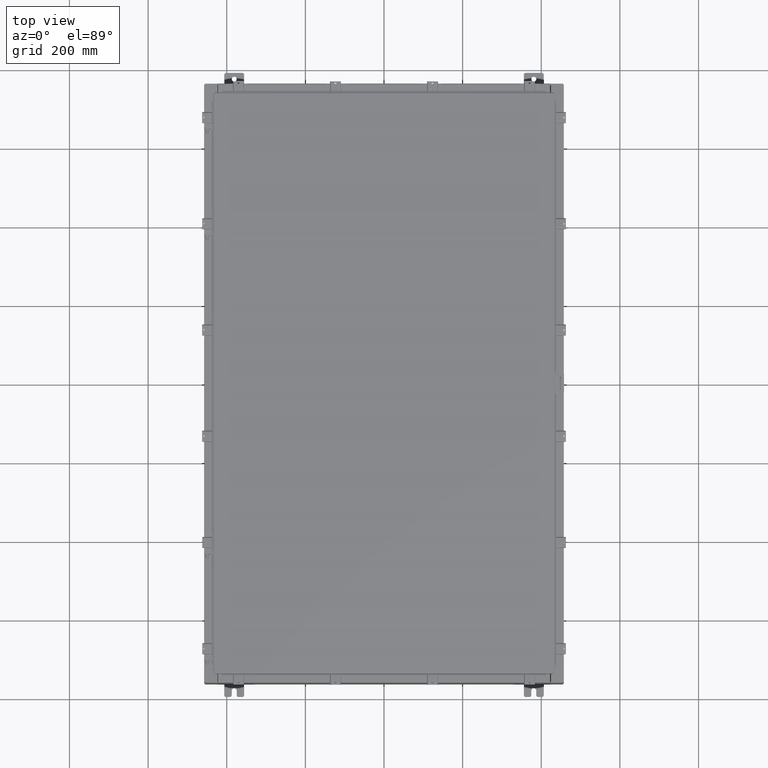
[diagram: clean part render]
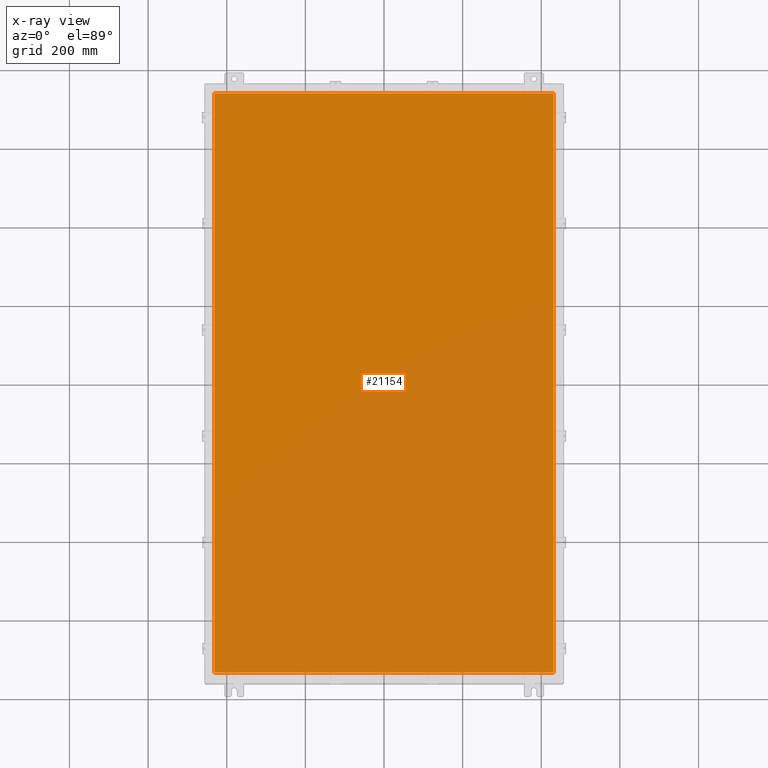
[diagram: x-ray — body ghosted, one internal face saturated and labeled with its STEP entity id]
A machine part, top view, then the same camera in x-ray: the body is ghosted and one INTERNAL B-rep face — a face not visible from any outside direction — is saturated and labeled: STEP entity #21154.
In plain terms, the highlighted planar face has unit normal (0, 0, -1).
Its self-contained STEP definition (entity closure, byte-faithful):
#328 = PLANE ( 'NONE',  #17841 ) ;
#521 = CARTESIAN_POINT ( 'NONE',  ( -16.99029999999999800, 29.00629999999998900, -0.07470000000000019700 ) ) ;
#638 = VECTOR ( 'NONE', #17362, 39.37007874015748100 ) ;
#884 = EDGE_CURVE ( 'NONE', #3389, #2207, #7267, .T. ) ;
#1230 = EDGE_CURVE ( 'NONE', #2207, #14401, #2649, .T. ) ;
#1664 = VECTOR ( 'NONE', #24512, 39.37007874015748100 ) ;
#1815 = ORIENTED_EDGE ( 'NONE', *, *, #884, .F. ) ;
#2135 = EDGE_CURVE ( 'NONE', #6260, #3389, #8899, .T. ) ;
#2207 = VERTEX_POINT ( 'NONE', #13115 ) ;
#2223 = DIRECTION ( 'NONE',  ( 0.0000000000000000000, 1.000000000000000000, 0.0000000000000000000 ) ) ;
#2494 = DIRECTION ( 'NONE',  ( -1.000000000000000000, 0.0000000000000000000, -0.0000000000000000000 ) ) ;
#2649 = LINE ( 'NONE', #27375, #638 ) ;
#2777 = CARTESIAN_POINT ( 'NONE',  ( 16.99030000000000500, -29.00630000000000000, -0.07470000000000019700 ) ) ;
#3389 = VERTEX_POINT ( 'NONE', #19308 ) ;
#5109 = LINE ( 'NONE', #2777, #15734 ) ;
#5468 = ORIENTED_EDGE ( 'NONE', *, *, #1230, .F. ) ;
#5991 = EDGE_LOOP ( 'NONE', ( #19807, #5468, #1815, #15694 ) ) ;
#6260 = VERTEX_POINT ( 'NONE', #26436 ) ;
#7267 = LINE ( 'NONE', #521, #1664 ) ;
#8174 = EDGE_CURVE ( 'NONE', #14401, #6260, #5109, .T. ) ;
#8899 = LINE ( 'NONE', #26498, #13218 ) ;
#13055 = CARTESIAN_POINT ( 'NONE',  ( 0.0000000000000000000, 0.0000000000000000000, -0.07470000000000000300 ) ) ;
#13115 = CARTESIAN_POINT ( 'NONE',  ( -16.99029999999999800, -29.00630000000000300, -0.07470000000000000300 ) ) ;
#13218 = VECTOR ( 'NONE', #21710, 39.37007874015748100 ) ;
#14401 = VERTEX_POINT ( 'NONE', #16531 ) ;
#15172 = DIRECTION ( 'NONE',  ( 0.0000000000000000000, 0.0000000000000000000, -1.000000000000000000 ) ) ;
#15694 = ORIENTED_EDGE ( 'NONE', *, *, #2135, .F. ) ;
#15734 = VECTOR ( 'NONE', #2223, 39.37007874015748100 ) ;
#16531 = CARTESIAN_POINT ( 'NONE',  ( 16.99030000000000500, -29.00630000000000300, -0.07470000000000000300 ) ) ;
#17362 = DIRECTION ( 'NONE',  ( 1.000000000000000000, -0.0000000000000000000, -0.0000000000000000000 ) ) ;
#17841 = AXIS2_PLACEMENT_3D ( 'NONE', #13055, #15172, #2494 ) ;
#19308 = CARTESIAN_POINT ( 'NONE',  ( -16.99029999999999800, 29.00630000000000000, -0.07470000000000000300 ) ) ;
#19807 = ORIENTED_EDGE ( 'NONE', *, *, #8174, .F. ) ;
#21154 = ADVANCED_FACE ( 'NONE', ( #25023 ), #328, .T. ) ;
#21710 = DIRECTION ( 'NONE',  ( -1.000000000000000000, -0.0000000000000000000, -0.0000000000000000000 ) ) ;
#24512 = DIRECTION ( 'NONE',  ( 0.0000000000000000000, -1.000000000000000000, 0.0000000000000000000 ) ) ;
#25023 = FACE_OUTER_BOUND ( 'NONE', #5991, .T. ) ;
#26436 = CARTESIAN_POINT ( 'NONE',  ( 16.99030000000000500, 29.00630000000000000, -0.07470000000000000300 ) ) ;
#26498 = CARTESIAN_POINT ( 'NONE',  ( 16.99030000000000100, 29.00630000000000300, -0.07469999999999804600 ) ) ;
#27375 = CARTESIAN_POINT ( 'NONE',  ( -16.99029999999999400, -29.00630000000000700, -0.07469999999999804600 ) ) ;